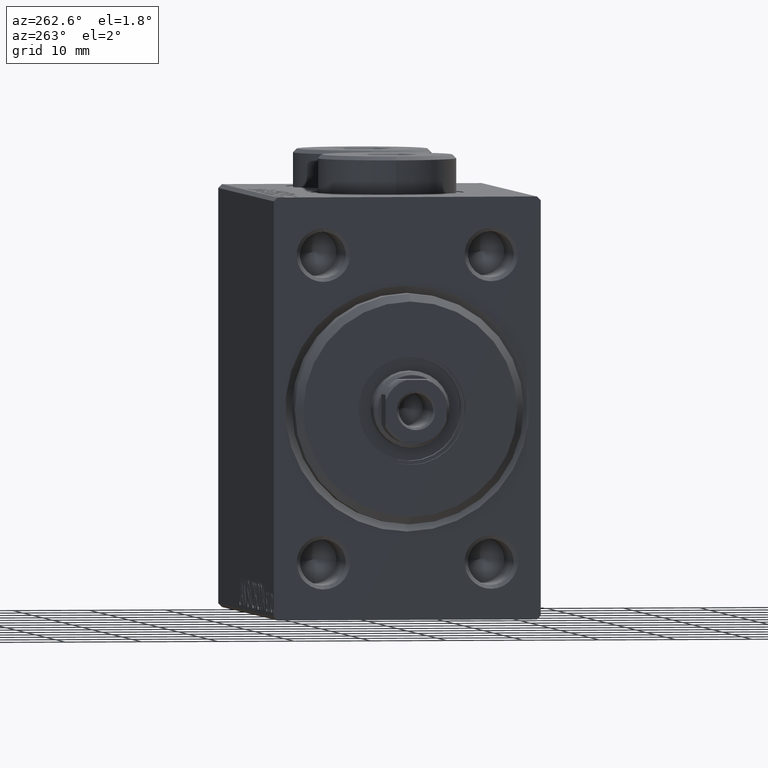
[diagram: clean part render]
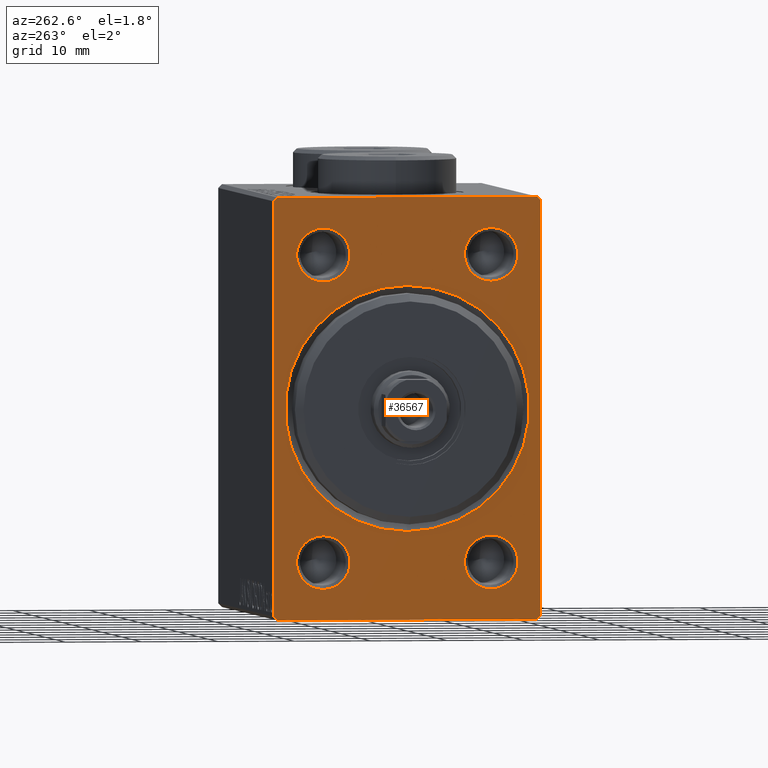
[diagram: same view with one face highlighted and labeled with its STEP entity id]
A machine part, auxiliary view. The second image highlights one B-rep face of the part: STEP entity #36567.
In plain terms, the highlighted planar face has unit normal (1, 0, 0).
Its self-contained STEP definition (entity closure, byte-faithful):
#388 = CIRCLE ( 'NONE', #18753, 3.500000000000003109 ) ;
#898 = AXIS2_PLACEMENT_3D ( 'NONE', #37790, #6491, #6931 ) ;
#997 = AXIS2_PLACEMENT_3D ( 'NONE', #38108, #34651, #28196 ) ;
#1427 = VECTOR ( 'NONE', #43940, 1000.000000000000000 ) ;
#1438 = PLANE ( 'NONE',  #1716 ) ;
#1552 = CIRCLE ( 'NONE', #27272, 3.500000000000003109 ) ;
#1716 = AXIS2_PLACEMENT_3D ( 'NONE', #9469, #40764, #15464 ) ;
#1836 = VECTOR ( 'NONE', #37649, 1000.000000000000000 ) ;
#2441 = DIRECTION ( 'NONE',  ( 1.000000000000000000, 0.000000000000000000, 0.000000000000000000 ) ) ;
#2625 = VERTEX_POINT ( 'NONE', #42596 ) ;
#2737 = CARTESIAN_POINT ( 'NONE',  ( 0.000000000000000000, 0.000000000000000000, 0.000000000000000000 ) ) ;
#2760 = CARTESIAN_POINT ( 'NONE',  ( 0.000000000000000000, 11.00000000000000178, -23.50000000000000355 ) ) ;
#2810 = CARTESIAN_POINT ( 'NONE',  ( 0.000000000000000000, 11.00000000000000178, 20.00000000000000711 ) ) ;
#3008 = VERTEX_POINT ( 'NONE', #34343 ) ;
#3186 = VERTEX_POINT ( 'NONE', #21877 ) ;
#3243 = VERTEX_POINT ( 'NONE', #25102 ) ;
#3985 = DIRECTION ( 'NONE',  ( 0.000000000000000000, 0.000000000000000000, -1.000000000000000000 ) ) ;
#4013 = ORIENTED_EDGE ( 'NONE', *, *, #28250, .T. ) ;
#4087 = DIRECTION ( 'NONE',  ( -0.000000000000000000, 0.7071067811865474617, 0.7071067811865474617 ) ) ;
#4194 = CARTESIAN_POINT ( 'NONE',  ( 0.000000000000000000, -16.99999999999998579, 27.49999999999998579 ) ) ;
#4201 = CARTESIAN_POINT ( 'NONE',  ( 0.000000000000000000, -11.00000000000000533, 20.00000000000000711 ) ) ;
#4441 = ORIENTED_EDGE ( 'NONE', *, *, #26637, .T. ) ;
#4894 = DIRECTION ( 'NONE',  ( 1.000000000000000000, 0.000000000000000000, 0.000000000000000000 ) ) ;
#5201 = VERTEX_POINT ( 'NONE', #15611 ) ;
#5453 = DIRECTION ( 'NONE',  ( 0.000000000000000000, -1.261617073437677752E-16, 1.000000000000000000 ) ) ;
#5858 = CARTESIAN_POINT ( 'NONE',  ( 0.000000000000000000, -16.99999999999997513, -27.50000000000000711 ) ) ;
#5900 = DIRECTION ( 'NONE',  ( 1.000000000000000000, 0.000000000000000000, 0.000000000000000000 ) ) ;
#6178 = DIRECTION ( 'NONE',  ( 1.000000000000000000, 0.000000000000000000, 0.000000000000000000 ) ) ;
#6491 = DIRECTION ( 'NONE',  ( 1.000000000000000000, 0.000000000000000000, 0.000000000000000000 ) ) ;
#6931 = DIRECTION ( 'NONE',  ( 0.000000000000000000, 0.000000000000000000, -1.000000000000000000 ) ) ;
#7905 = AXIS2_PLACEMENT_3D ( 'NONE', #21677, #21912, #10870 ) ;
#8068 = CARTESIAN_POINT ( 'NONE',  ( 0.000000000000000000, 17.50000000000000711, -27.00000000000000355 ) ) ;
#8143 = ORIENTED_EDGE ( 'NONE', *, *, #36177, .T. ) ;
#8560 = FACE_BOUND ( 'NONE', #11240, .T. ) ;
#8580 = ORIENTED_EDGE ( 'NONE', *, *, #13641, .T. ) ;
#8691 = LINE ( 'NONE', #12371, #25787 ) ;
#8734 = CARTESIAN_POINT ( 'NONE',  ( 0.000000000000000000, -17.49999999999999645, 27.49999999999998579 ) ) ;
#9436 = EDGE_CURVE ( 'NONE', #5201, #22340, #24039, .T. ) ;
#9469 = CARTESIAN_POINT ( 'NONE',  ( 0.000000000000000000, 0.000000000000000000, 0.000000000000000000 ) ) ;
#10259 = AXIS2_PLACEMENT_3D ( 'NONE', #43168, #14628, #42696 ) ;
#10728 = VERTEX_POINT ( 'NONE', #17398 ) ;
#10870 = DIRECTION ( 'NONE',  ( 0.000000000000000000, 0.000000000000000000, -1.000000000000000000 ) ) ;
#11039 = EDGE_CURVE ( 'NONE', #3243, #35461, #19643, .T. ) ;
#11240 = EDGE_LOOP ( 'NONE', ( #28777, #35752 ) ) ;
#11547 = VERTEX_POINT ( 'NONE', #25200 ) ;
#11672 = CARTESIAN_POINT ( 'NONE',  ( 0.000000000000000000, 17.50000000000000000, 26.99999999999998224 ) ) ;
#12371 = CARTESIAN_POINT ( 'NONE',  ( 0.000000000000000000, 17.50000000000000711, -27.50000000000001066 ) ) ;
#13072 = EDGE_CURVE ( 'NONE', #3008, #25964, #43045, .T. ) ;
#13395 = DIRECTION ( 'NONE',  ( 0.000000000000000000, 0.000000000000000000, -1.000000000000000000 ) ) ;
#13641 = EDGE_CURVE ( 'NONE', #3008, #24073, #26138, .T. ) ;
#13867 = VERTEX_POINT ( 'NONE', #2760 ) ;
#14628 = DIRECTION ( 'NONE',  ( 1.000000000000000000, 0.000000000000000000, 0.000000000000000000 ) ) ;
#14772 = DIRECTION ( 'NONE',  ( 1.000000000000000000, 0.000000000000000000, 0.000000000000000000 ) ) ;
#14818 = ORIENTED_EDGE ( 'NONE', *, *, #13072, .F. ) ;
#15055 = VERTEX_POINT ( 'NONE', #15878 ) ;
#15220 = VECTOR ( 'NONE', #21635, 1000.000000000000000 ) ;
#15329 = DIRECTION ( 'NONE',  ( -0.000000000000000000, 0.7071067811865500152, -0.7071067811865451302 ) ) ;
#15464 = DIRECTION ( 'NONE',  ( 0.000000000000000000, 0.000000000000000000, -1.000000000000000000 ) ) ;
#15611 = CARTESIAN_POINT ( 'NONE',  ( 0.000000000000000000, 1.959434878635766709E-15, -16.00000000000001421 ) ) ;
#15679 = ORIENTED_EDGE ( 'NONE', *, *, #33586, .T. ) ;
#15797 = DIRECTION ( 'NONE',  ( 0.000000000000000000, 0.000000000000000000, -1.000000000000000000 ) ) ;
#15878 = CARTESIAN_POINT ( 'NONE',  ( 0.000000000000000000, -11.00000000000000533, -16.49999999999999645 ) ) ;
#16923 = CARTESIAN_POINT ( 'NONE',  ( 0.000000000000000000, -17.49999999999999645, -27.50000000000000711 ) ) ;
#17398 = CARTESIAN_POINT ( 'NONE',  ( 0.000000000000000000, -17.49999999999999645, -26.99999999999998579 ) ) ;
#17660 = AXIS2_PLACEMENT_3D ( 'NONE', #4201, #14772, #42615 ) ;
#18335 = EDGE_LOOP ( 'NONE', ( #44721, #15679, #14818, #8580, #35392, #37350, #35767, #22776 ) ) ;
#18613 = CIRCLE ( 'NONE', #997, 3.500000000000003109 ) ;
#18753 = AXIS2_PLACEMENT_3D ( 'NONE', #33964, #2441, #30747 ) ;
#18756 = CIRCLE ( 'NONE', #41568, 3.500000000000003109 ) ;
#19125 = FACE_BOUND ( 'NONE', #23402, .T. ) ;
#19504 = EDGE_CURVE ( 'NONE', #2625, #15055, #40377, .T. ) ;
#19643 = CIRCLE ( 'NONE', #7905, 3.500000000000003109 ) ;
#19929 = EDGE_CURVE ( 'NONE', #3186, #10728, #29669, .T. ) ;
#20549 = EDGE_CURVE ( 'NONE', #22340, #5201, #22014, .T. ) ;
#20658 = VECTOR ( 'NONE', #28161, 1000.000000000000114 ) ;
#20798 = CARTESIAN_POINT ( 'NONE',  ( 0.000000000000000000, -16.99999999999997513, -27.50000000000000711 ) ) ;
#21025 = LINE ( 'NONE', #20798, #20658 ) ;
#21484 = VECTOR ( 'NONE', #4087, 1000.000000000000114 ) ;
#21561 = CARTESIAN_POINT ( 'NONE',  ( 0.000000000000000000, -17.49999999999999645, 26.99999999999997868 ) ) ;
#21635 = DIRECTION ( 'NONE',  ( 0.000000000000000000, -1.000000000000000000, -1.982541115402065356E-16 ) ) ;
#21677 = CARTESIAN_POINT ( 'NONE',  ( 0.000000000000000000, 11.00000000000000178, 20.00000000000000711 ) ) ;
#21877 = CARTESIAN_POINT ( 'NONE',  ( 0.000000000000000000, -17.49999999999999645, 26.99999999999997868 ) ) ;
#21912 = DIRECTION ( 'NONE',  ( 1.000000000000000000, 0.000000000000000000, 0.000000000000000000 ) ) ;
#22014 = CIRCLE ( 'NONE', #10259, 16.00000000000001421 ) ;
#22340 = VERTEX_POINT ( 'NONE', #31580 ) ;
#22776 = ORIENTED_EDGE ( 'NONE', *, *, #29056, .T. ) ;
#23217 = DIRECTION ( 'NONE',  ( 0.000000000000000000, 0.000000000000000000, -1.000000000000000000 ) ) ;
#23279 = FACE_BOUND ( 'NONE', #26723, .T. ) ;
#23402 = EDGE_LOOP ( 'NONE', ( #33669, #33412 ) ) ;
#23934 = CARTESIAN_POINT ( 'NONE',  ( 0.000000000000000000, -11.00000000000000533, 23.50000000000001066 ) ) ;
#24039 = CIRCLE ( 'NONE', #28465, 16.00000000000001421 ) ;
#24073 = VERTEX_POINT ( 'NONE', #11672 ) ;
#24560 = CARTESIAN_POINT ( 'NONE',  ( 0.000000000000000000, 11.00000000000000178, -16.49999999999999645 ) ) ;
#24581 = ORIENTED_EDGE ( 'NONE', *, *, #11039, .T. ) ;
#24681 = EDGE_LOOP ( 'NONE', ( #33865, #24581 ) ) ;
#25102 = CARTESIAN_POINT ( 'NONE',  ( 0.000000000000000000, 11.00000000000000178, 16.50000000000000355 ) ) ;
#25200 = CARTESIAN_POINT ( 'NONE',  ( 0.000000000000000000, -11.00000000000000533, 16.50000000000000355 ) ) ;
#25228 = VERTEX_POINT ( 'NONE', #24560 ) ;
#25787 = VECTOR ( 'NONE', #5453, 1000.000000000000000 ) ;
#25964 = VERTEX_POINT ( 'NONE', #4194 ) ;
#26138 = LINE ( 'NONE', #33716, #36548 ) ;
#26637 = EDGE_CURVE ( 'NONE', #30324, #11547, #36138, .T. ) ;
#26723 = EDGE_LOOP ( 'NONE', ( #4013, #28252 ) ) ;
#27272 = AXIS2_PLACEMENT_3D ( 'NONE', #36421, #4894, #3985 ) ;
#27343 = VECTOR ( 'NONE', #36144, 1000.000000000000000 ) ;
#28161 = DIRECTION ( 'NONE',  ( -0.000000000000000000, -0.7071067811865474617, 0.7071067811865474617 ) ) ;
#28196 = DIRECTION ( 'NONE',  ( 0.000000000000000000, 0.000000000000000000, -1.000000000000000000 ) ) ;
#28250 = EDGE_CURVE ( 'NONE', #25228, #13867, #1552, .T. ) ;
#28252 = ORIENTED_EDGE ( 'NONE', *, *, #44432, .T. ) ;
#28465 = AXIS2_PLACEMENT_3D ( 'NONE', #2737, #6178, #23217 ) ;
#28482 = LINE ( 'NONE', #21561, #21484 ) ;
#28621 = AXIS2_PLACEMENT_3D ( 'NONE', #41113, #5900, #15797 ) ;
#28630 = EDGE_CURVE ( 'NONE', #37856, #24073, #8691, .T. ) ;
#28777 = ORIENTED_EDGE ( 'NONE', *, *, #20549, .T. ) ;
#28871 = VERTEX_POINT ( 'NONE', #5858 ) ;
#29056 = EDGE_CURVE ( 'NONE', #28871, #10728, #21025, .T. ) ;
#29669 = LINE ( 'NONE', #8734, #1427 ) ;
#30324 = VERTEX_POINT ( 'NONE', #23934 ) ;
#30415 = FACE_BOUND ( 'NONE', #34084, .T. ) ;
#30747 = DIRECTION ( 'NONE',  ( 0.000000000000000000, 0.000000000000000000, -1.000000000000000000 ) ) ;
#30880 = DIRECTION ( 'NONE',  ( 1.000000000000000000, 0.000000000000000000, 0.000000000000000000 ) ) ;
#31580 = CARTESIAN_POINT ( 'NONE',  ( 0.000000000000000000, 0.000000000000000000, 16.00000000000001421 ) ) ;
#32844 = EDGE_CURVE ( 'NONE', #15055, #2625, #40575, .T. ) ;
#33054 = EDGE_CURVE ( 'NONE', #37856, #42132, #43278, .T. ) ;
#33393 = FACE_OUTER_BOUND ( 'NONE', #18335, .T. ) ;
#33412 = ORIENTED_EDGE ( 'NONE', *, *, #19504, .T. ) ;
#33586 = EDGE_CURVE ( 'NONE', #3186, #25964, #28482, .T. ) ;
#33669 = ORIENTED_EDGE ( 'NONE', *, *, #32844, .T. ) ;
#33716 = CARTESIAN_POINT ( 'NONE',  ( 0.000000000000000000, 16.99999999999998579, 27.49999999999999289 ) ) ;
#33865 = ORIENTED_EDGE ( 'NONE', *, *, #41176, .T. ) ;
#33964 = CARTESIAN_POINT ( 'NONE',  ( 0.000000000000000000, 11.00000000000000178, -20.00000000000000000 ) ) ;
#34084 = EDGE_LOOP ( 'NONE', ( #4441, #8143 ) ) ;
#34343 = CARTESIAN_POINT ( 'NONE',  ( 0.000000000000000000, 16.99999999999998579, 27.49999999999999289 ) ) ;
#34651 = DIRECTION ( 'NONE',  ( 1.000000000000000000, 0.000000000000000000, 0.000000000000000000 ) ) ;
#35392 = ORIENTED_EDGE ( 'NONE', *, *, #28630, .F. ) ;
#35461 = VERTEX_POINT ( 'NONE', #39212 ) ;
#35596 = CARTESIAN_POINT ( 'NONE',  ( 0.000000000000000000, 17.50000000000000711, -27.00000000000000355 ) ) ;
#35752 = ORIENTED_EDGE ( 'NONE', *, *, #9436, .T. ) ;
#35767 = ORIENTED_EDGE ( 'NONE', *, *, #44377, .F. ) ;
#36138 = CIRCLE ( 'NONE', #17660, 3.500000000000003109 ) ;
#36144 = DIRECTION ( 'NONE',  ( 0.000000000000000000, -0.7071067811865524577, -0.7071067811865426878 ) ) ;
#36177 = EDGE_CURVE ( 'NONE', #11547, #30324, #18613, .T. ) ;
#36421 = CARTESIAN_POINT ( 'NONE',  ( 0.000000000000000000, 11.00000000000000178, -20.00000000000000000 ) ) ;
#36548 = VECTOR ( 'NONE', #15329, 1000.000000000000114 ) ;
#36567 = ADVANCED_FACE ( 'NONE', ( #8560, #19125, #30415, #36635, #23279, #33393 ), #1438, .F. ) ;
#36635 = FACE_BOUND ( 'NONE', #24681, .T. ) ;
#37188 = LINE ( 'NONE', #16923, #1836 ) ;
#37350 = ORIENTED_EDGE ( 'NONE', *, *, #33054, .T. ) ;
#37649 = DIRECTION ( 'NONE',  ( 0.000000000000000000, 1.000000000000000000, -9.912705577010325549E-17 ) ) ;
#37790 = CARTESIAN_POINT ( 'NONE',  ( 0.000000000000000000, -11.00000000000000533, -20.00000000000000000 ) ) ;
#37856 = VERTEX_POINT ( 'NONE', #35596 ) ;
#38108 = CARTESIAN_POINT ( 'NONE',  ( 0.000000000000000000, -11.00000000000000533, 20.00000000000000711 ) ) ;
#39126 = CARTESIAN_POINT ( 'NONE',  ( 0.000000000000000000, 17.50000000000000000, 27.49999999999999289 ) ) ;
#39212 = CARTESIAN_POINT ( 'NONE',  ( 0.000000000000000000, 11.00000000000000178, 23.50000000000001066 ) ) ;
#40377 = CIRCLE ( 'NONE', #28621, 3.500000000000003109 ) ;
#40575 = CIRCLE ( 'NONE', #898, 3.500000000000003109 ) ;
#40764 = DIRECTION ( 'NONE',  ( 1.000000000000000000, 0.000000000000000000, 0.000000000000000000 ) ) ;
#40962 = CARTESIAN_POINT ( 'NONE',  ( 0.000000000000000000, 16.99999999999999289, -27.50000000000001066 ) ) ;
#41113 = CARTESIAN_POINT ( 'NONE',  ( 0.000000000000000000, -11.00000000000000533, -20.00000000000000000 ) ) ;
#41176 = EDGE_CURVE ( 'NONE', #35461, #3243, #18756, .T. ) ;
#41568 = AXIS2_PLACEMENT_3D ( 'NONE', #2810, #30880, #13395 ) ;
#42132 = VERTEX_POINT ( 'NONE', #40962 ) ;
#42596 = CARTESIAN_POINT ( 'NONE',  ( 0.000000000000000000, -11.00000000000000533, -23.50000000000000355 ) ) ;
#42615 = DIRECTION ( 'NONE',  ( 0.000000000000000000, 0.000000000000000000, -1.000000000000000000 ) ) ;
#42696 = DIRECTION ( 'NONE',  ( 0.000000000000000000, 0.000000000000000000, -1.000000000000000000 ) ) ;
#43045 = LINE ( 'NONE', #39126, #15220 ) ;
#43168 = CARTESIAN_POINT ( 'NONE',  ( 0.000000000000000000, 0.000000000000000000, 0.000000000000000000 ) ) ;
#43278 = LINE ( 'NONE', #8068, #27343 ) ;
#43940 = DIRECTION ( 'NONE',  ( 0.000000000000000000, 0.000000000000000000, -1.000000000000000000 ) ) ;
#44377 = EDGE_CURVE ( 'NONE', #28871, #42132, #37188, .T. ) ;
#44432 = EDGE_CURVE ( 'NONE', #13867, #25228, #388, .T. ) ;
#44721 = ORIENTED_EDGE ( 'NONE', *, *, #19929, .F. ) ;